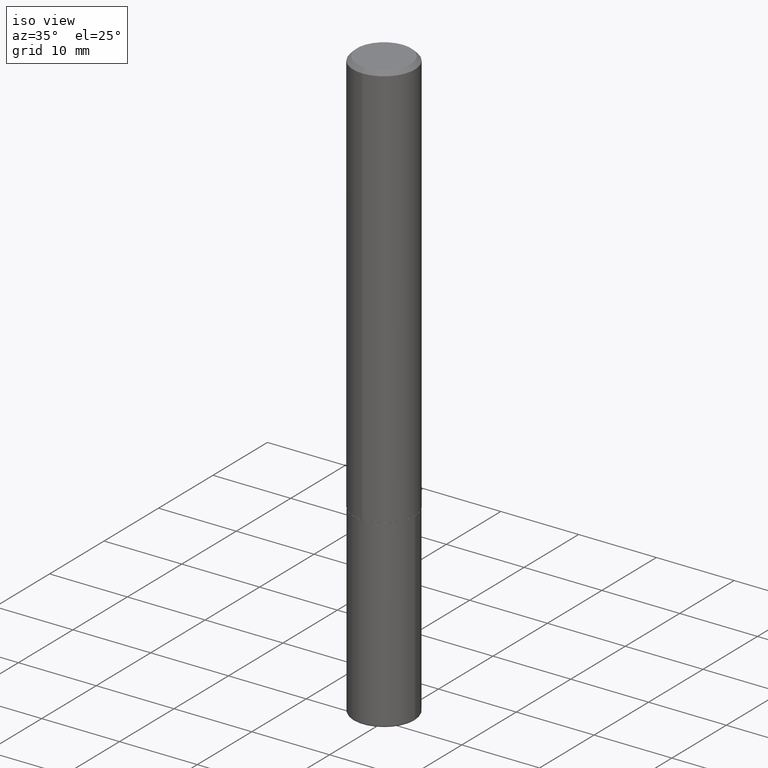
[diagram: clean part render]
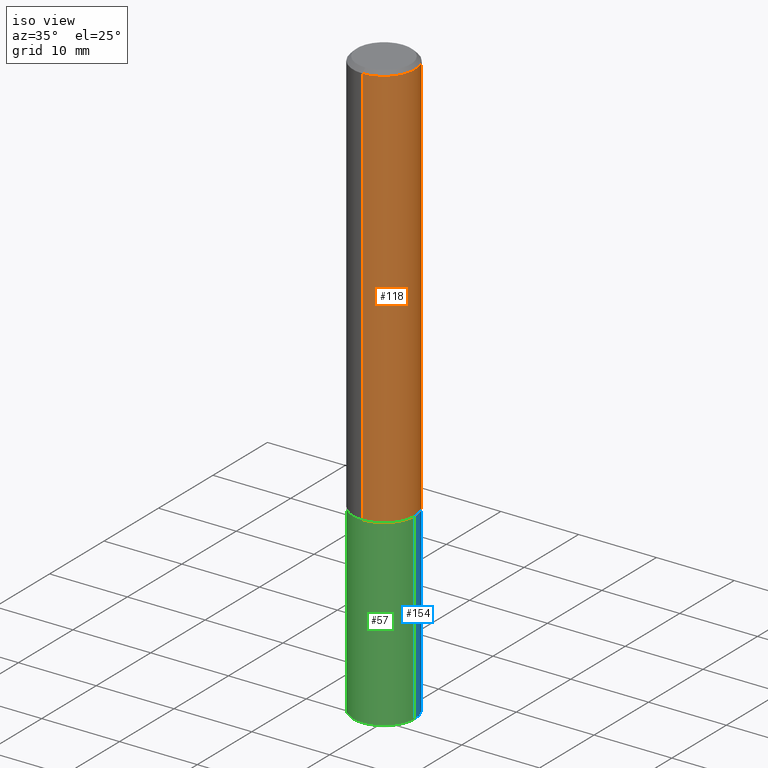
[diagram: same view with three faces highlighted in distinct colors, each labeled with its STEP entity id]
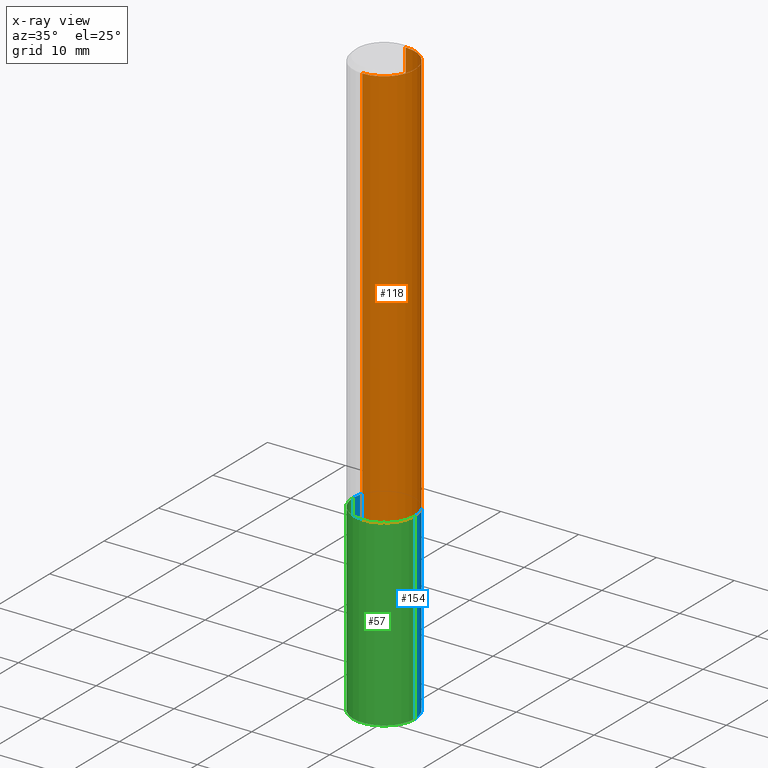
[diagram: x-ray of the same camera — body ghosted, the three highlighted faces saturated]
A machine part, iso view with three faces highlighted in distinct colors.
The next image is the same camera in x-ray (body ghosted, the three faces saturated) — at least one of them is partly hidden behind the body in this view.
Their STEP definitions:

[orange] entity #118 — the highlighted cylindrical surface (partial cylindrical patch) has radius 3.9688 mm, axis along (-0, 0, 1).
#1 = CYLINDRICAL_SURFACE ( 'NONE', #372, 0.1562500000000001388 ) ;
#7 = EDGE_CURVE ( 'NONE', #198, #344, #370, .T. ) ;
#32 = DIRECTION ( 'NONE',  ( -6.982962677686265133E-15, -1.000000000000000000, 3.496765431890256920E-15 ) ) ;
#38 = VERTEX_POINT ( 'NONE', #313 ) ;
#39 = EDGE_CURVE ( 'NONE', #38, #198, #278, .T. ) ;
#62 = DIRECTION ( 'NONE',  ( -6.982962677686265922E-15, -1.000000000000000000, 3.491900563592035238E-15 ) ) ;
#68 = VECTOR ( 'NONE', #395, 39.37007874015748143 ) ;
#71 = EDGE_CURVE ( 'NONE', #38, #177, #350, .T. ) ;
#84 = EDGE_CURVE ( 'NONE', #177, #344, #285, .T. ) ;
#109 = ORIENTED_EDGE ( 'NONE', *, *, #84, .T. ) ;
#113 = CARTESIAN_POINT ( 'NONE',  ( -1.071952812151801215E-15, -0.1562500000000000833, -0.01999999999999948694 ) ) ;
#118 = ADVANCED_FACE ( 'NONE', ( #125 ), #1, .T. ) ;
#125 = FACE_OUTER_BOUND ( 'NONE', #160, .T. ) ;
#126 = ORIENTED_EDGE ( 'NONE', *, *, #71, .T. ) ;
#147 = ORIENTED_EDGE ( 'NONE', *, *, #39, .F. ) ;
#149 = VECTOR ( 'NONE', #339, 39.37007874015748143 ) ;
#160 = EDGE_LOOP ( 'NONE', ( #126, #109, #348, #147 ) ) ;
#165 = CARTESIAN_POINT ( 'NONE',  ( 5.040730454096381281E-29, -7.198553011844980434E-15, -2.061500000000000110 ) ) ;
#177 = VERTEX_POINT ( 'NONE', #246 ) ;
#188 = AXIS2_PLACEMENT_3D ( 'NONE', #254, #322, #32 ) ;
#198 = VERTEX_POINT ( 'NONE', #113 ) ;
#218 = AXIS2_PLACEMENT_3D ( 'NONE', #165, #222, #321 ) ;
#222 = DIRECTION ( 'NONE',  ( -2.445176063107630933E-29, 3.491900563592034843E-15, 1.000000000000000000 ) ) ;
#224 = CARTESIAN_POINT ( 'NONE',  ( 0.000000000000000000, 0.000000000000000000, 0.000000000000000000 ) ) ;
#246 = CARTESIAN_POINT ( 'NONE',  ( 1.110223024625183362E-15, 0.1562499999999930611, -2.061500000000000554 ) ) ;
#254 = CARTESIAN_POINT ( 'NONE',  ( 4.890352126215269679E-31, -6.983801127184080238E-17, -0.02000000000000003511 ) ) ;
#259 = CARTESIAN_POINT ( 'NONE',  ( 1.110223024625157329E-15, 0.1562500000000001388, -5.456094630612559989E-16 ) ) ;
#277 = CARTESIAN_POINT ( 'NONE',  ( 1.091087918388479568E-15, 0.1562499999999999445, -0.02000000000000057981 ) ) ;
#278 = LINE ( 'NONE', #413, #149 ) ;
#285 = LINE ( 'NONE', #259, #68 ) ;
#313 = CARTESIAN_POINT ( 'NONE',  ( -1.091087918388430659E-15, -0.1562500000000074940, -2.061499999999999666 ) ) ;
#321 = DIRECTION ( 'NONE',  ( -6.982962677686265922E-15, -1.000000000000000000, 3.496765431890250609E-15 ) ) ;
#322 = DIRECTION ( 'NONE',  ( -2.445176063107630933E-29, 3.491900563592034843E-15, 1.000000000000000000 ) ) ;
#339 = DIRECTION ( 'NONE',  ( -2.445176063107631214E-29, 3.491900563592034843E-15, 1.000000000000000000 ) ) ;
#344 = VERTEX_POINT ( 'NONE', #277 ) ;
#348 = ORIENTED_EDGE ( 'NONE', *, *, #7, .F. ) ;
#350 = CIRCLE ( 'NONE', #218, 0.1562500000000002776 ) ;
#352 = DIRECTION ( 'NONE',  ( -2.445176063107630933E-29, 3.491900563592034843E-15, 1.000000000000000000 ) ) ;
#370 = CIRCLE ( 'NONE', #188, 0.1562500000000000000 ) ;
#372 = AXIS2_PLACEMENT_3D ( 'NONE', #224, #352, #62 ) ;
#395 = DIRECTION ( 'NONE',  ( -2.445176063107631214E-29, 3.491900563592034843E-15, 1.000000000000000000 ) ) ;
#413 = CARTESIAN_POINT ( 'NONE',  ( -1.091087918388479962E-15, -0.1562500000000001388, 5.456094630612559989E-16 ) ) ;

[blue] entity #154 — the highlighted cylindrical surface (partial cylindrical patch) has radius 3.9688 mm, axis along (-0, 0, 1).
#5 = AXIS2_PLACEMENT_3D ( 'NONE', #311, #25, #50 ) ;
#10 = VERTEX_POINT ( 'NONE', #129 ) ;
#25 = DIRECTION ( 'NONE',  ( -2.445468806185136597E-29, 3.491481338843145583E-15, 1.000000000000000000 ) ) ;
#27 = CARTESIAN_POINT ( 'NONE',  ( 0.1562500000000000278, -1.153061712152948940E-14, -2.990000000000000657 ) ) ;
#33 = EDGE_CURVE ( 'NONE', #373, #58, #91, .T. ) ;
#50 = DIRECTION ( 'NONE',  ( 1.000000000000000000, -6.982962677686262766E-15, 0.000000000000000000 ) ) ;
#55 = LINE ( 'NONE', #238, #189 ) ;
#58 = VERTEX_POINT ( 'NONE', #192 ) ;
#83 = DIRECTION ( 'NONE',  ( 1.000000000000000000, -6.982962677686269077E-15, 0.000000000000000000 ) ) ;
#87 = VERTEX_POINT ( 'NONE', #155 ) ;
#91 = CIRCLE ( 'NONE', #5, 0.1562500000000000000 ) ;
#98 = FACE_OUTER_BOUND ( 'NONE', #257, .T. ) ;
#107 = DIRECTION ( 'NONE',  ( -2.445468806185136877E-29, 3.491481338843145188E-15, 1.000000000000000000 ) ) ;
#129 = CARTESIAN_POINT ( 'NONE',  ( 0.1562500000000000000, -8.292268179752468540E-15, -2.062500000000000000 ) ) ;
#135 = CARTESIAN_POINT ( 'NONE',  ( 0.000000000000000000, 0.000000000000000000, 0.000000000000000000 ) ) ;
#154 = ADVANCED_FACE ( 'NONE', ( #98 ), #293, .T. ) ;
#155 = CARTESIAN_POINT ( 'NONE',  ( -0.1562500000000000000, -7.710131707627340889E-15, -2.062500000000000000 ) ) ;
#159 = AXIS2_PLACEMENT_3D ( 'NONE', #305, #380, #83 ) ;
#166 = ORIENTED_EDGE ( 'NONE', *, *, #187, .T. ) ;
#169 = VECTOR ( 'NONE', #107, 39.37007874015748143 ) ;
#187 = EDGE_CURVE ( 'NONE', #58, #87, #55, .T. ) ;
#189 = VECTOR ( 'NONE', #215, 39.37007874015748143 ) ;
#192 = CARTESIAN_POINT ( 'NONE',  ( -0.1562500000000000278, -9.329306178515851319E-15, -2.990000000000000657 ) ) ;
#195 = EDGE_CURVE ( 'NONE', #373, #10, #249, .T. ) ;
#209 = AXIS2_PLACEMENT_3D ( 'NONE', #135, #233, #363 ) ;
#215 = DIRECTION ( 'NONE',  ( -2.445468806185136877E-29, 3.491481338843145188E-15, 1.000000000000000000 ) ) ;
#221 = ORIENTED_EDGE ( 'NONE', *, *, #228, .F. ) ;
#228 = EDGE_CURVE ( 'NONE', #10, #87, #393, .T. ) ;
#230 = ORIENTED_EDGE ( 'NONE', *, *, #195, .F. ) ;
#233 = DIRECTION ( 'NONE',  ( -2.445468806185136597E-29, 3.491481338843145583E-15, 1.000000000000000000 ) ) ;
#238 = CARTESIAN_POINT ( 'NONE',  ( -0.1562500000000000000, 1.110223024625156540E-15, -7.685836078523291160E-30 ) ) ;
#249 = LINE ( 'NONE', #300, #169 ) ;
#257 = EDGE_LOOP ( 'NONE', ( #299, #166, #221, #230 ) ) ;
#293 = CYLINDRICAL_SURFACE ( 'NONE', #209, 0.1562500000000000000 ) ;
#299 = ORIENTED_EDGE ( 'NONE', *, *, #33, .T. ) ;
#300 = CARTESIAN_POINT ( 'NONE',  ( 0.1562500000000000000, -1.091087918388479174E-15, 7.619026212181150377E-30 ) ) ;
#305 = CARTESIAN_POINT ( 'NONE',  ( 5.043779412756844791E-29, -7.201180261363988578E-15, -2.062500000000000000 ) ) ;
#311 = CARTESIAN_POINT ( 'NONE',  ( 7.311951730493559366E-29, -1.043952920314100786E-14, -2.990000000000000657 ) ) ;
#363 = DIRECTION ( 'NONE',  ( 1.000000000000000000, -6.982962677686266711E-15, 4.876176775795936353E-29 ) ) ;
#373 = VERTEX_POINT ( 'NONE', #27 ) ;
#380 = DIRECTION ( 'NONE',  ( -2.445468806185136597E-29, 3.491481338843145583E-15, 1.000000000000000000 ) ) ;
#393 = CIRCLE ( 'NONE', #159, 0.1562500000000000000 ) ;

[green] entity #57 — the highlighted cylindrical surface (partial cylindrical patch) has radius 3.9688 mm, axis along (-0, 0, 1).
#9 = ORIENTED_EDGE ( 'NONE', *, *, #187, .F. ) ;
#10 = VERTEX_POINT ( 'NONE', #129 ) ;
#14 = EDGE_CURVE ( 'NONE', #87, #10, #59, .T. ) ;
#17 = CYLINDRICAL_SURFACE ( 'NONE', #157, 0.1562500000000000000 ) ;
#27 = CARTESIAN_POINT ( 'NONE',  ( 0.1562500000000000278, -1.153061712152948940E-14, -2.990000000000000657 ) ) ;
#35 = AXIS2_PLACEMENT_3D ( 'NONE', #114, #247, #379 ) ;
#55 = LINE ( 'NONE', #238, #189 ) ;
#57 = ADVANCED_FACE ( 'NONE', ( #239 ), #17, .T. ) ;
#58 = VERTEX_POINT ( 'NONE', #192 ) ;
#59 = CIRCLE ( 'NONE', #273, 0.1562500000000000000 ) ;
#87 = VERTEX_POINT ( 'NONE', #155 ) ;
#95 = DIRECTION ( 'NONE',  ( 1.000000000000000000, -6.982962677686269077E-15, 0.000000000000000000 ) ) ;
#102 = EDGE_CURVE ( 'NONE', #58, #373, #184, .T. ) ;
#107 = DIRECTION ( 'NONE',  ( -2.445468806185136877E-29, 3.491481338843145188E-15, 1.000000000000000000 ) ) ;
#114 = CARTESIAN_POINT ( 'NONE',  ( 7.311951730493559366E-29, -1.043952920314100786E-14, -2.990000000000000657 ) ) ;
#129 = CARTESIAN_POINT ( 'NONE',  ( 0.1562500000000000000, -8.292268179752468540E-15, -2.062500000000000000 ) ) ;
#142 = CARTESIAN_POINT ( 'NONE',  ( 0.000000000000000000, 0.000000000000000000, 0.000000000000000000 ) ) ;
#152 = EDGE_LOOP ( 'NONE', ( #9, #167, #292, #328 ) ) ;
#155 = CARTESIAN_POINT ( 'NONE',  ( -0.1562500000000000000, -7.710131707627340889E-15, -2.062500000000000000 ) ) ;
#157 = AXIS2_PLACEMENT_3D ( 'NONE', #142, #267, #355 ) ;
#167 = ORIENTED_EDGE ( 'NONE', *, *, #102, .T. ) ;
#169 = VECTOR ( 'NONE', #107, 39.37007874015748143 ) ;
#184 = CIRCLE ( 'NONE', #35, 0.1562500000000000000 ) ;
#187 = EDGE_CURVE ( 'NONE', #58, #87, #55, .T. ) ;
#189 = VECTOR ( 'NONE', #215, 39.37007874015748143 ) ;
#192 = CARTESIAN_POINT ( 'NONE',  ( -0.1562500000000000278, -9.329306178515851319E-15, -2.990000000000000657 ) ) ;
#195 = EDGE_CURVE ( 'NONE', #373, #10, #249, .T. ) ;
#215 = DIRECTION ( 'NONE',  ( -2.445468806185136877E-29, 3.491481338843145188E-15, 1.000000000000000000 ) ) ;
#238 = CARTESIAN_POINT ( 'NONE',  ( -0.1562500000000000000, 1.110223024625156540E-15, -7.685836078523291160E-30 ) ) ;
#239 = FACE_OUTER_BOUND ( 'NONE', #152, .T. ) ;
#247 = DIRECTION ( 'NONE',  ( -2.445468806185136597E-29, 3.491481338843145583E-15, 1.000000000000000000 ) ) ;
#249 = LINE ( 'NONE', #300, #169 ) ;
#256 = CARTESIAN_POINT ( 'NONE',  ( 5.043779412756844791E-29, -7.201180261363988578E-15, -2.062500000000000000 ) ) ;
#267 = DIRECTION ( 'NONE',  ( -2.445468806185136597E-29, 3.491481338843145583E-15, 1.000000000000000000 ) ) ;
#273 = AXIS2_PLACEMENT_3D ( 'NONE', #256, #391, #95 ) ;
#292 = ORIENTED_EDGE ( 'NONE', *, *, #195, .T. ) ;
#300 = CARTESIAN_POINT ( 'NONE',  ( 0.1562500000000000000, -1.091087918388479174E-15, 7.619026212181150377E-30 ) ) ;
#328 = ORIENTED_EDGE ( 'NONE', *, *, #14, .F. ) ;
#355 = DIRECTION ( 'NONE',  ( 1.000000000000000000, -6.982962677686266711E-15, 4.876176775795936353E-29 ) ) ;
#373 = VERTEX_POINT ( 'NONE', #27 ) ;
#379 = DIRECTION ( 'NONE',  ( 1.000000000000000000, -6.982962677686262766E-15, 0.000000000000000000 ) ) ;
#391 = DIRECTION ( 'NONE',  ( -2.445468806185136597E-29, 3.491481338843145583E-15, 1.000000000000000000 ) ) ;